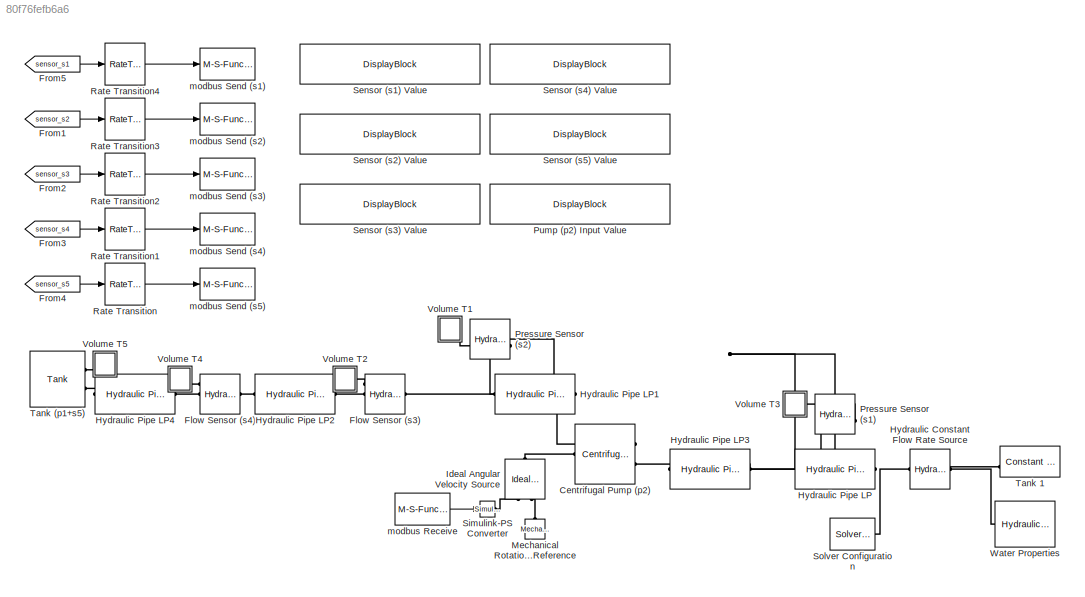
MODEL slx_80f76fefb6a6
KIND model
CONFIG AbsTol = 1e-3
CONFIG EnableMultiTasking = on
CONFIG FixedStep = 0.01
CONFIG MaxStep = auto
CONFIG MinStep = auto
CONFIG RelTol = 1e-3
CONFIG SampleTimeConstraint = Unconstrained
CONFIG Solver = VariableStepAuto
CONFIG SolverName = VariableStepAuto
CONFIG StartTime = 0.0
CONFIG StopTime = 10
BLOCK [Reference] Centrifugal Pump (p2)  REF=sh_lib/Pumps and Motors/Centrifugal Pump
  Ports = [0, 0, 0, 0, 0, 1, 2]
  SourceBlock = sh_lib/Pumps and Motors/Centrifugal Pump
  SourceProductBaseCode = SH
  SourceProductName = Simscape Fluids
  SourceType = Centrifugal Pump
BLOCK [Reference] Flow Sensor (s3)  REF=fl_lib/Hydraulic/Hydraulic Sensors/Hydraulic Flow Rate
Sensor
  Ports = [0, 0, 0, 0, 0, 1, 3]
  SourceBlock = fl_lib/Hydraulic/Hydraulic Sensors/Hydraulic Flow Rate\nSensor
  SourceProductBaseCode = SS
  SourceProductName = Simscape
  SourceType = Hydraulic Flow Rate\nSensor
BLOCK [Reference] Flow Sensor (s4)  REF=fl_lib/Hydraulic/Hydraulic Sensors/Hydraulic Flow Rate
Sensor
  Ports = [0, 0, 0, 0, 0, 1, 3]
  SourceBlock = fl_lib/Hydraulic/Hydraulic Sensors/Hydraulic Flow Rate\nSensor
  SourceProductBaseCode = SS
  SourceProductName = Simscape
  SourceType = Hydraulic Flow Rate\nSensor
BLOCK [From] From1
  GotoTag = sensor_s2
  TagVisibility = global
BLOCK [From] From2
  GotoTag = sensor_s3
  TagVisibility = global
BLOCK [From] From3
  GotoTag = sensor_s4
  TagVisibility = global
BLOCK [From] From4
  GotoTag = sensor_s5
  TagVisibility = global
BLOCK [From] From5
  GotoTag = sensor_s1
  TagVisibility = global
BLOCK [Reference] Hydraulic Constant Flow Rate Source  REF=fl_lib/Hydraulic/Hydraulic Sources/Hydraulic Constant
Flow Rate Source
  Ports = [0, 0, 0, 0, 0, 1, 1]
  SourceBlock = fl_lib/Hydraulic/Hydraulic Sources/Hydraulic Constant\nFlow Rate Source
  SourceProductBaseCode = SS
  SourceProductName = Simscape
  SourceType = Hydraulic Constant\nFlow Rate Source
BLOCK [Reference] Hydraulic Pipe LP  REF=sh_lib/Low-Pressure Blocks/Hydraulic Pipe LP
  Ports = [0, 0, 0, 0, 0, 1, 1]
  SourceBlock = sh_lib/Low-Pressure Blocks/Hydraulic Pipe LP
  SourceProductBaseCode = SH
  SourceProductName = Simscape Fluids
  SourceType = Hydraulic Pipe LP
BLOCK [Reference] Hydraulic Pipe LP1  REF=sh_lib/Low-Pressure Blocks/Hydraulic Pipe LP
  Ports = [0, 0, 0, 0, 0, 1, 1]
  SourceBlock = sh_lib/Low-Pressure Blocks/Hydraulic Pipe LP
  SourceProductBaseCode = SH
  SourceProductName = Simscape Fluids
  SourceType = Hydraulic Pipe LP
BLOCK [Reference] Hydraulic Pipe LP2  REF=sh_lib/Low-Pressure Blocks/Hydraulic Pipe LP
  Ports = [0, 0, 0, 0, 0, 1, 1]
  SourceBlock = sh_lib/Low-Pressure Blocks/Hydraulic Pipe LP
  SourceProductBaseCode = SH
  SourceProductName = Simscape Fluids
  SourceType = Hydraulic Pipe LP
BLOCK [Reference] Hydraulic Pipe LP3  REF=sh_lib/Low-Pressure Blocks/Hydraulic Pipe LP
  Ports = [0, 0, 0, 0, 0, 1, 1]
  SourceBlock = sh_lib/Low-Pressure Blocks/Hydraulic Pipe LP
  SourceProductBaseCode = SH
  SourceProductName = Simscape Fluids
  SourceType = Hydraulic Pipe LP
BLOCK [Reference] Hydraulic Pipe LP4  REF=sh_lib/Low-Pressure Blocks/Hydraulic Pipe LP
  Ports = [0, 0, 0, 0, 0, 1, 1]
  SourceBlock = sh_lib/Low-Pressure Blocks/Hydraulic Pipe LP
  SourceProductBaseCode = SH
  SourceProductName = Simscape Fluids
  SourceType = Hydraulic Pipe LP
BLOCK [Reference] Ideal Angular Velocity Source  REF=fl_lib/Mechanical/Mechanical Sources/Ideal Angular
Velocity Source
  Ports = [0, 0, 0, 0, 0, 1, 2]
  SourceBlock = fl_lib/Mechanical/Mechanical Sources/Ideal Angular\nVelocity Source
  SourceProductBaseCode = SS
  SourceProductName = Simscape
  SourceType = Ideal Angular\nVelocity Source
BLOCK [Reference] Mechanical Rotational Reference  REF=fl_lib/Mechanical/Rotational Elements/Mechanical
Rotational Reference
  Ports = [0, 0, 0, 0, 0, 1]
  SourceBlock = fl_lib/Mechanical/Rotational Elements/Mechanical\nRotational Reference
  SourceProductBaseCode = SS
  SourceProductName = Simscape
  SourceType = Mechanical\nRotational Reference
BLOCK [Reference] Pressure Sensor (s1)  REF=fl_lib/Hydraulic/Hydraulic Sensors/Hydraulic Pressure
Sensor
  Ports = [0, 0, 0, 0, 0, 1, 2]
  SourceBlock = fl_lib/Hydraulic/Hydraulic Sensors/Hydraulic Pressure\nSensor
  SourceProductBaseCode = SS
  SourceProductName = Simscape
  SourceType = Hydraulic Pressure\nSensor
BLOCK [Reference] Pressure Sensor (s2)  REF=fl_lib/Hydraulic/Hydraulic Sensors/Hydraulic Pressure
Sensor
  Ports = [0, 0, 0, 0, 0, 1, 2]
  SourceBlock = fl_lib/Hydraulic/Hydraulic Sensors/Hydraulic Pressure\nSensor
  SourceProductBaseCode = SS
  SourceProductName = Simscape
  SourceType = Hydraulic Pressure\nSensor
BLOCK [DisplayBlock] Pump (p2) Input Value
  LabelPosition = Hide
  WebBlockId = 225
BLOCK [RateTransition] Rate Transition
  OutPortSampleTime = 0.01
BLOCK [RateTransition] Rate Transition1
  OutPortSampleTime = 0.01
BLOCK [RateTransition] Rate Transition2
  OutPortSampleTime = 0.01
BLOCK [RateTransition] Rate Transition3
  OutPortSampleTime = 0.01
BLOCK [RateTransition] Rate Transition4
  OutPortSampleTime = 0.05
BLOCK [DisplayBlock] Sensor (s1) Value
  LabelPosition = Hide
  WebBlockId = 226
BLOCK [DisplayBlock] Sensor (s2) Value
  LabelPosition = Hide
  WebBlockId = 227
BLOCK [DisplayBlock] Sensor (s3) Value
  LabelPosition = Hide
  WebBlockId = 228
BLOCK [DisplayBlock] Sensor (s4) Value
  LabelPosition = Hide
  WebBlockId = 229
BLOCK [DisplayBlock] Sensor (s5) Value
  LabelPosition = Hide
  WebBlockId = 230
BLOCK [Reference] Simulink-PS Converter  REF=nesl_utility/Simulink-PS
Converter
  Ports = [1, 0, 0, 0, 0, 0, 1]
  SourceBlock = nesl_utility/Simulink-PS\nConverter
  SourceProductBaseCode = SS
  SourceProductName = Simscape
  SourceType = Simulink-PS\nConverter
BLOCK [Reference] Solver Configuration  REF=nesl_utility/Solver
Configuration
  Ports = [0, 0, 0, 0, 0, 0, 1]
  SourceBlock = nesl_utility/Solver\nConfiguration
  SourceProductBaseCode = SS
  SourceProductName = Simscape
  SourceType = Solver\nConfiguration
BLOCK [Reference] Tank (p1+s5)  REF=sh_lib/Low-Pressure Blocks/Tank
  Ports = [0, 0, 0, 0, 0, 0, 2]
  SourceBlock = sh_lib/Low-Pressure Blocks/Tank
  SourceProductBaseCode = SH
  SourceProductName = Simscape Fluids
  SourceType = Tank
BLOCK [Reference] Tank 1  REF=sh_lib/Low-Pressure Blocks/Constant Head Tank
  Ports = [0, 0, 0, 0, 0, 0, 2]
  SourceBlock = sh_lib/Low-Pressure Blocks/Constant Head Tank
  SourceProductBaseCode = SH
  SourceProductName = Simscape Fluids
  SourceType = Constant Head Tank
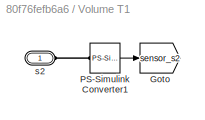
BLOCK [SubSystem] Volume T1
  Ports = [0, 0, 0, 0, 0, 1]
  RequestExecContextInheritance = off
BLOCK [Goto] Volume T1/Goto
  GotoTag = sensor_s2
  TagVisibility = global
BLOCK [Reference] Volume T1/PS-Simulink Converter1  REF=nesl_utility/PS-Simulink
Converter
  Ports = [0, 1, 0, 0, 0, 1]
  SourceBlock = nesl_utility/PS-Simulink\nConverter
  SourceProductBaseCode = SS
  SourceProductName = Simscape
  SourceType = PS-Simulink\nConverter
BLOCK [PMIOPort] Volume T1/s2
  Side = Left
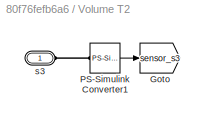
BLOCK [SubSystem] Volume T2
  Ports = [0, 0, 0, 0, 0, 1]
  RequestExecContextInheritance = off
BLOCK [Goto] Volume T2/Goto
  GotoTag = sensor_s3
  TagVisibility = global
BLOCK [Reference] Volume T2/PS-Simulink Converter1  REF=nesl_utility/PS-Simulink
Converter
  Ports = [0, 1, 0, 0, 0, 1]
  SourceBlock = nesl_utility/PS-Simulink\nConverter
  SourceProductBaseCode = SS
  SourceProductName = Simscape
  SourceType = PS-Simulink\nConverter
BLOCK [PMIOPort] Volume T2/s3
  Side = Left
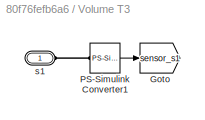
BLOCK [SubSystem] Volume T3
  Ports = [0, 0, 0, 0, 0, 1]
  RequestExecContextInheritance = off
BLOCK [Goto] Volume T3/Goto
  GotoTag = sensor_s1
  TagVisibility = global
BLOCK [Reference] Volume T3/PS-Simulink Converter1  REF=nesl_utility/PS-Simulink
Converter
  Ports = [0, 1, 0, 0, 0, 1]
  SourceBlock = nesl_utility/PS-Simulink\nConverter
  SourceProductBaseCode = SS
  SourceProductName = Simscape
  SourceType = PS-Simulink\nConverter
BLOCK [PMIOPort] Volume T3/s1
  Side = Left
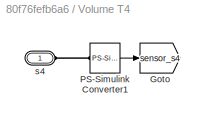
BLOCK [SubSystem] Volume T4
  Ports = [0, 0, 0, 0, 0, 1]
  RequestExecContextInheritance = off
BLOCK [Goto] Volume T4/Goto
  GotoTag = sensor_s4
  TagVisibility = global
BLOCK [Reference] Volume T4/PS-Simulink Converter1  REF=nesl_utility/PS-Simulink
Converter
  Ports = [0, 1, 0, 0, 0, 1]
  SourceBlock = nesl_utility/PS-Simulink\nConverter
  SourceProductBaseCode = SS
  SourceProductName = Simscape
  SourceType = PS-Simulink\nConverter
BLOCK [PMIOPort] Volume T4/s4
  Side = Left
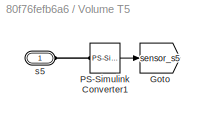
BLOCK [SubSystem] Volume T5
  Ports = [0, 0, 0, 0, 0, 1]
  RequestExecContextInheritance = off
BLOCK [Goto] Volume T5/Goto
  GotoTag = sensor_s5
  TagVisibility = global
BLOCK [Reference] Volume T5/PS-Simulink Converter1  REF=nesl_utility/PS-Simulink
Converter
  Ports = [0, 1, 0, 0, 0, 1]
  SourceBlock = nesl_utility/PS-Simulink\nConverter
  SourceProductBaseCode = SS
  SourceProductName = Simscape
  SourceType = PS-Simulink\nConverter
BLOCK [PMIOPort] Volume T5/s5
  Side = Left
BLOCK [Reference] Water Properties  REF=sh_lib/Hydraulic Utilities/Hydraulic Fluid
  Ports = [0, 0, 0, 0, 0, 0, 1]
  SourceBlock = sh_lib/Hydraulic Utilities/Hydraulic Fluid
  SourceProductBaseCode = SH
  SourceProductName = Simscape Fluids
  SourceType = Hydraulic Fluid
BLOCK [M-S-Function] modbus Receive
  FunctionName = receive_modbus_tcpip
  Parameters = 40
  Ports = [0, 1]
BLOCK [M-S-Function] modbus Send (s1)
  FunctionName = send_modbus_tcpip
  Parameters = 0
  Ports = [1]
BLOCK [M-S-Function] modbus Send (s2)
  FunctionName = send_modbus_tcpip
  Parameters = 8
  Ports = [1]
BLOCK [M-S-Function] modbus Send (s3)
  FunctionName = send_modbus_tcpip
  Parameters = 16
  Ports = [1]
BLOCK [M-S-Function] modbus Send (s4)
  FunctionName = send_modbus_tcpip
  Parameters = 24
  Ports = [1]
BLOCK [M-S-Function] modbus Send (s5)
  FunctionName = send_modbus_tcpip
  Parameters = 32
  Ports = [1]
LINE From1:1 -> Rate Transition3:1
LINE From2:1 -> Rate Transition2:1
LINE From3:1 -> Rate Transition1:1
LINE From4:1 -> Rate Transition:1
LINE From5:1 -> Rate Transition4:1
LINE Rate Transition1:1 -> modbus Send (s4):1
LINE Rate Transition2:1 -> modbus Send (s3):1
LINE Rate Transition3:1 -> modbus Send (s2):1
LINE Rate Transition4:1 -> modbus Send (s1):1
LINE Rate Transition:1 -> modbus Send (s5):1
LINE Volume T1/PS-Simulink Converter1:1 -> Volume T1/Goto:1
LINE Volume T2/PS-Simulink Converter1:1 -> Volume T2/Goto:1
LINE Volume T3/PS-Simulink Converter1:1 -> Volume T3/Goto:1
LINE Volume T4/PS-Simulink Converter1:1 -> Volume T4/Goto:1
LINE Volume T5/PS-Simulink Converter1:1 -> Volume T5/Goto:1
LINE modbus Receive:1 -> Simulink-PS Converter:1
PLINE Centrifugal Pump (p2):LConn1 -- Ideal Angular Velocity Source:LConn1
PNET net1: Centrifugal Pump (p2):RConn1 -- Hydraulic Pipe LP1:LConn1 -- Pressure Sensor (s2):LConn1
PLINE Centrifugal Pump (p2):RConn2 -- Hydraulic Pipe LP3:RConn1
PNET net2: Flow Sensor (s3):LConn1 -- Hydraulic Pipe LP1:RConn1 -- Pressure Sensor (s2):RConn1
PLINE Flow Sensor (s3):RConn1 -- Volume T2:LConn1
PLINE Flow Sensor (s3):RConn2 -- Hydraulic Pipe LP2:LConn1
PLINE Flow Sensor (s4):LConn1 -- Hydraulic Pipe LP2:RConn1
PLINE Flow Sensor (s4):RConn1 -- Volume T4:LConn1
PLINE Flow Sensor (s4):RConn2 -- Hydraulic Pipe LP4:LConn1
PNET net3: Hydraulic Constant Flow Rate Source:LConn1 -- Hydraulic Pipe LP:LConn1 -- Pressure Sensor (s1):LConn1 -- Solver Configuration:RConn1
PNET net4: Hydraulic Constant Flow Rate Source:RConn1 -- Tank 1:RConn2 -- Water Properties:RConn1
PNET net5: Hydraulic Pipe LP3:LConn1 -- Hydraulic Pipe LP:RConn1 -- Pressure Sensor (s1):RConn1
PLINE Hydraulic Pipe LP4:RConn1 -- Tank (p1+s5):RConn2
PLINE Ideal Angular Velocity Source:RConn1 -- Simulink-PS Converter:RConn1
PLINE Ideal Angular Velocity Source:RConn2 -- Mechanical Rotational Reference:LConn1
PLINE Pressure Sensor (s1):RConn2 -- Volume T3:LConn1
PLINE Pressure Sensor (s2):RConn2 -- Volume T1:LConn1
PLINE Tank (p1+s5):RConn1 -- Volume T5:LConn1
PLINE Volume T1/PS-Simulink Converter1:LConn1 -- Volume T1/s2:RConn1
PLINE Volume T2/PS-Simulink Converter1:LConn1 -- Volume T2/s3:RConn1
PLINE Volume T3/PS-Simulink Converter1:LConn1 -- Volume T3/s1:RConn1
PLINE Volume T4/PS-Simulink Converter1:LConn1 -- Volume T4/s4:RConn1
PLINE Volume T5/PS-Simulink Converter1:LConn1 -- Volume T5/s5:RConn1
note: PNET lines group multi-terminal physical nets as a canonical sorted terminal list (undirected conserving connections); 2-terminal nets keep the pairwise PLINE form
